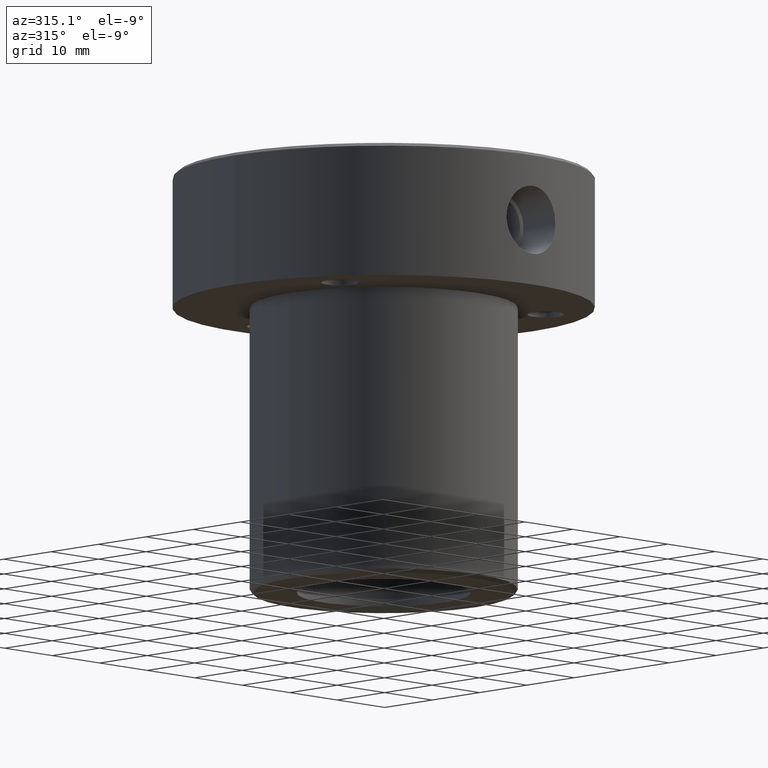
[diagram: clean part render]
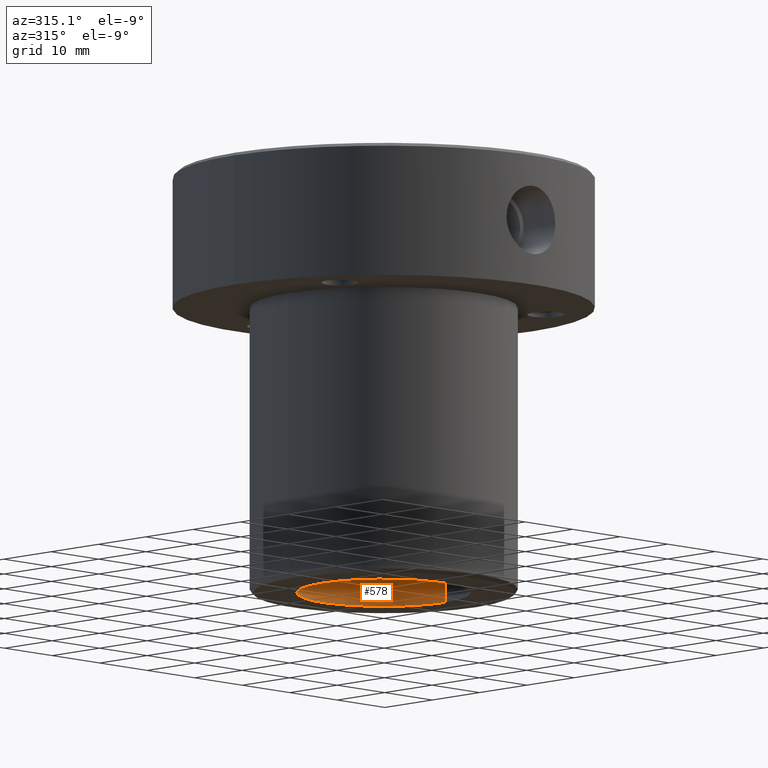
[diagram: same view with one face highlighted and labeled with its STEP entity id]
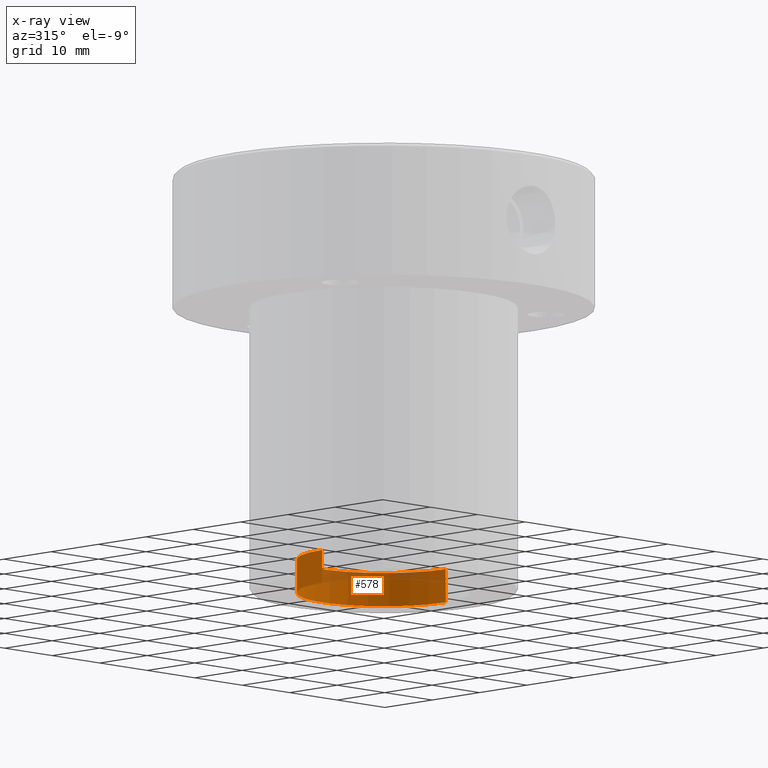
[diagram: x-ray of the same camera — body ghosted, the highlighted face saturated]
A machine part, auxiliary view. The second image highlights one B-rep face of the part: STEP entity #578.
The next image is the same camera in x-ray: the body ghosted, the highlighted face saturated — about 21% of this face is hidden behind the body in this view.
In plain terms, the highlighted cylindrical surface (partial cylindrical patch) has radius 13 mm, axis along (-0, -0, -1).
Its self-contained STEP definition (entity closure, byte-faithful):
#62 = VERTEX_POINT ( 'NONE', #1214 ) ;
#89 = CARTESIAN_POINT ( 'NONE',  ( 13.00000000000000178, 1.592040838891559293E-15, -58.00000000000000000 ) ) ;
#121 = EDGE_CURVE ( 'NONE', #62, #427, #446, .T. ) ;
#149 = VECTOR ( 'NONE', #1211, 1000.000000000000000 ) ;
#233 = ORIENTED_EDGE ( 'NONE', *, *, #614, .F. ) ;
#250 = FACE_OUTER_BOUND ( 'NONE', #290, .T. ) ;
#285 = VECTOR ( 'NONE', #822, 1000.000000000000000 ) ;
#290 = EDGE_LOOP ( 'NONE', ( #233, #565, #864, #478 ) ) ;
#320 = CARTESIAN_POINT ( 'NONE',  ( 13.00000000000000178, 1.592040838891559293E-15, -63.00000000000000000 ) ) ;
#427 = VERTEX_POINT ( 'NONE', #505 ) ;
#431 = DIRECTION ( 'NONE',  ( -1.000000000000000000, 0.000000000000000000, 0.000000000000000000 ) ) ;
#433 = LINE ( 'NONE', #808, #285 ) ;
#442 = DIRECTION ( 'NONE',  ( -1.000000000000000000, 0.000000000000000000, 0.000000000000000000 ) ) ;
#446 = LINE ( 'NONE', #1239, #149 ) ;
#475 = CARTESIAN_POINT ( 'NONE',  ( 0.000000000000000000, 0.000000000000000000, -58.00000000000000000 ) ) ;
#478 = ORIENTED_EDGE ( 'NONE', *, *, #888, .T. ) ;
#505 = CARTESIAN_POINT ( 'NONE',  ( -13.00000000000000178, 0.000000000000000000, -63.00000000000000000 ) ) ;
#564 = AXIS2_PLACEMENT_3D ( 'NONE', #637, #1120, #442 ) ;
#565 = ORIENTED_EDGE ( 'NONE', *, *, #1163, .F. ) ;
#578 = ADVANCED_FACE ( 'NONE', ( #250 ), #1023, .F. ) ;
#614 = EDGE_CURVE ( 'NONE', #1219, #1027, #433, .T. ) ;
#637 = CARTESIAN_POINT ( 'NONE',  ( 0.000000000000000000, 0.000000000000000000, -58.00000000000000000 ) ) ;
#672 = AXIS2_PLACEMENT_3D ( 'NONE', #1227, #718, #431 ) ;
#718 = DIRECTION ( 'NONE',  ( 0.000000000000000000, 0.000000000000000000, -1.000000000000000000 ) ) ;
#805 = AXIS2_PLACEMENT_3D ( 'NONE', #475, #1062, #1065 ) ;
#808 = CARTESIAN_POINT ( 'NONE',  ( 13.00000000000000178, 1.592040838891559293E-15, -58.00000000000000000 ) ) ;
#822 = DIRECTION ( 'NONE',  ( -0.000000000000000000, -0.000000000000000000, -1.000000000000000000 ) ) ;
#864 = ORIENTED_EDGE ( 'NONE', *, *, #121, .T. ) ;
#888 = EDGE_CURVE ( 'NONE', #427, #1027, #1054, .T. ) ;
#1023 = CYLINDRICAL_SURFACE ( 'NONE', #564, 13.00000000000000178 ) ;
#1027 = VERTEX_POINT ( 'NONE', #320 ) ;
#1054 = CIRCLE ( 'NONE', #672, 13.00000000000000178 ) ;
#1062 = DIRECTION ( 'NONE',  ( 0.000000000000000000, 0.000000000000000000, -1.000000000000000000 ) ) ;
#1065 = DIRECTION ( 'NONE',  ( -1.000000000000000000, 0.000000000000000000, 0.000000000000000000 ) ) ;
#1120 = DIRECTION ( 'NONE',  ( -0.000000000000000000, -0.000000000000000000, -1.000000000000000000 ) ) ;
#1163 = EDGE_CURVE ( 'NONE', #62, #1219, #1176, .T. ) ;
#1176 = CIRCLE ( 'NONE', #805, 13.00000000000000178 ) ;
#1211 = DIRECTION ( 'NONE',  ( -0.000000000000000000, -0.000000000000000000, -1.000000000000000000 ) ) ;
#1214 = CARTESIAN_POINT ( 'NONE',  ( -13.00000000000000178, 0.000000000000000000, -58.00000000000000000 ) ) ;
#1219 = VERTEX_POINT ( 'NONE', #89 ) ;
#1227 = CARTESIAN_POINT ( 'NONE',  ( 0.000000000000000000, 0.000000000000000000, -63.00000000000000000 ) ) ;
#1239 = CARTESIAN_POINT ( 'NONE',  ( -13.00000000000000178, 0.000000000000000000, -58.00000000000000000 ) ) ;